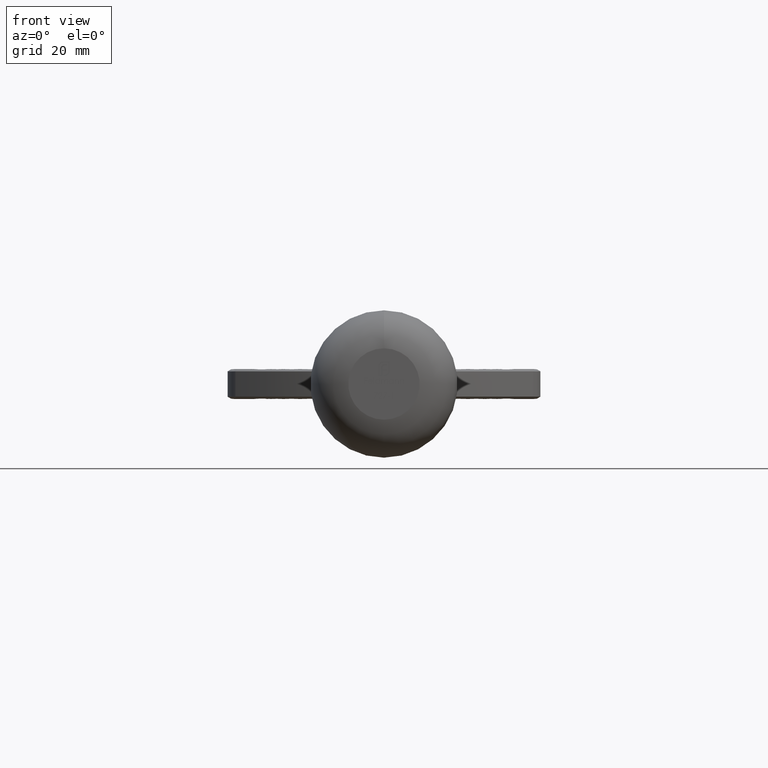
[diagram: clean part render]
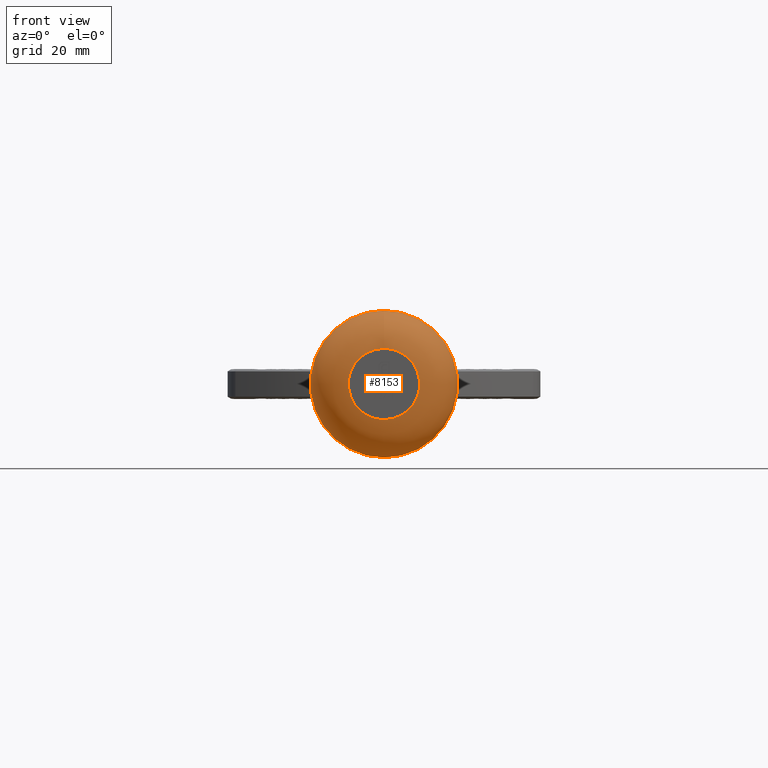
[diagram: same view with one face highlighted and labeled with its STEP entity id]
A machine part, front view. The second image highlights one B-rep face of the part: STEP entity #8153.
In plain terms, the highlighted toroidal blend (fillet) surface has major radius 7.75 mm and minor (blend) radius 8.25 mm.
Its self-contained STEP definition (entity closure, byte-faithful):
#37 = CARTESIAN_POINT ( 'NONE',  ( -15.70732162931448528, -19.57412458702678038, 0.6620331333767709436 ) ) ;
#125 = CARTESIAN_POINT ( 'NONE',  ( -13.73724700003639931, -19.34070796460224884, 7.477229911939941687 ) ) ;
#229 = CARTESIAN_POINT ( 'NONE',  ( 11.71685802671840548, -19.13574760348332759, 10.28437048258841990 ) ) ;
#265 = CARTESIAN_POINT ( 'NONE',  ( 3.443747093800764159, -18.63025660746363599, 15.00111593391057596 ) ) ;
#356 = CARTESIAN_POINT ( 'NONE',  ( 0.7037205721614030463, -18.57818533388499915, 15.36527872725278243 ) ) ;
#529 = VERTEX_POINT ( 'NONE', #841 ) ;
#559 = CARTESIAN_POINT ( 'NONE',  ( -11.71729713318398147, -19.13578893511338563, -10.28388033237391497 ) ) ;
#639 = CARTESIAN_POINT ( 'NONE',  ( -9.128027797552611844, -18.92110899342737795, -12.54609791265849061 ) ) ;
#661 = CARTESIAN_POINT ( 'NONE',  ( 13.73724700003201349, -19.34070796460177277, -7.477229911947692820 ) ) ;
#701 = CARTESIAN_POINT ( 'NONE',  ( 15.37168942086549706, -19.53230741582190433, -3.241421685026968813 ) ) ;
#738 = CARTESIAN_POINT ( 'NONE',  ( 14.06402115556342380, -19.37519990017266025, 6.897559800137014641 ) ) ;
#841 = CARTESIAN_POINT ( 'NONE',  ( 13.74456268988297225, -19.34070796460177277, 7.463773761301380816 ) ) ;
#950 = CARTESIAN_POINT ( 'NONE',  ( -15.29236728832824888, -19.52288315187717771, -3.541401456644251322 ) ) ;
#1211 = CARTESIAN_POINT ( 'NONE',  ( 13.40145683187901859, -19.30366281970927034, 8.071900788222752254 ) ) ;
#1258 = CARTESIAN_POINT ( 'NONE',  ( 2.418953016645177367, -18.60401410716640314, 15.18908747446822893 ) ) ;
#1296 = CARTESIAN_POINT ( 'NONE',  ( 10.22564549621019481, -19.00563445521657968, 11.70906421970811628 ) ) ;
#1339 = CARTESIAN_POINT ( 'NONE',  ( -1.370252859363842113, -18.58540254813071613, 15.32359998277321900 ) ) ;
#1357 = CARTESIAN_POINT ( 'NONE',  ( -13.01814827950030029, -19.26343387127528572, -8.653833904707637359 ) ) ;
#1448 = CARTESIAN_POINT ( 'NONE',  ( 0.3310436180698204667, -18.57844592663914796, -15.36632690227910736 ) ) ;
#1526 = CARTESIAN_POINT ( 'NONE',  ( 8.536858301184357956, -18.87840472064427289, -12.93679508394443900 ) ) ;
#1553 = CARTESIAN_POINT ( 'NONE',  ( -4.766205144392278825, -18.67492790641594169, 14.66588375309063075 ) ) ;
#1621 = B_SPLINE_CURVE_WITH_KNOTS ( 'NONE', 3,
 ( #661, #1630, #7643, #1793, #6639, #701, #8627, #2779, #3653, #5572, #9599, #12425, #7598, #12338, #738, #5530 ),
 .UNSPECIFIED., .F., .F.,
 ( 4, 2, 2, 2, 2, 2, 2, 4 ),
 ( 0.06617270981354325676, 0.06814373241659948954, 0.07011475501965573620, 0.07208577762271196898, 0.07405680022576820176, 0.07799884543188068120, 0.07996986803493691398, 0.08194089063799314676 ),
 .UNSPECIFIED. ) ;
#1630 = CARTESIAN_POINT ( 'NONE',  ( 14.05605773533482861, -19.37506125008313163, -6.913448936943464851 ) ) ;
#1793 = CARTESIAN_POINT ( 'NONE',  ( 14.83557063522544439, -19.46605738517900264, -5.111066321600636009 ) ) ;
#1865 = EDGE_CURVE ( 'NONE', #11268, #11268, #11769, .T. ) ;
#1873 = CARTESIAN_POINT ( 'NONE',  ( -15.36505422618864714, -19.53206734984433979, -3.224123865853164350 ) ) ;
#2184 = CARTESIAN_POINT ( 'NONE',  ( 10.74335809208267989, -19.04899397394898131, 11.25675861536690725 ) ) ;
#2221 = CARTESIAN_POINT ( 'NONE',  ( 1.391210126348925380, -18.58496244415120913, 15.32122506314385824 ) ) ;
#2288 = VERTEX_POINT ( 'NONE', #7915 ) ;
#2325 = CARTESIAN_POINT ( 'NONE',  ( -12.17273847422997690, -19.17915758017074168, -9.764149219720072992 ) ) ;
#2390 = DIRECTION ( 'NONE',  ( 0.000000000000000000, 0.000000000000000000, 1.000000000000000000 ) ) ;
#2407 = CARTESIAN_POINT ( 'NONE',  ( -8.542964947739019266, -18.87963560146026509, -12.93336373028667730 ) ) ;
#2461 = CARTESIAN_POINT ( 'NONE',  ( -10.74407468845551072, -19.04905563560618376, -11.25609432146072741 ) ) ;
#2528 = CARTESIAN_POINT ( 'NONE',  ( -5.420325787739684209, -18.70252965902105302, 14.44888785789142105 ) ) ;
#2546 = CARTESIAN_POINT ( 'NONE',  ( 10.20850369200323016, -19.00391225422378483, -11.72314827973143991 ) ) ;
#2779 = CARTESIAN_POINT ( 'NONE',  ( 15.66489385541573398, -19.56893056379515983, -1.314637247642459261 ) ) ;
#2968 = CARTESIAN_POINT ( 'NONE',  ( -14.47346079901414306, -19.42277544521091315, -6.001309046197713215 ) ) ;
#3166 = EDGE_CURVE ( 'NONE', #2288, #9761, #7426, .T. ) ;
#3264 = CARTESIAN_POINT ( 'NONE',  ( 0.000000000000000000, -29.99999999999999289, 7.750000000000001776 ) ) ;
#3394 = CARTESIAN_POINT ( 'NONE',  ( 3.433146953558957826, -18.62906724357413424, -15.01486218946384632 ) ) ;
#3424 = ORIENTED_EDGE ( 'NONE', *, *, #1865, .T. ) ;
#3492 = CARTESIAN_POINT ( 'NONE',  ( -7.334595523665388583, -18.80178974787522250, 13.62165104382381209 ) ) ;
#3512 = CARTESIAN_POINT ( 'NONE',  ( -2.760552112080552067, -18.61183253989615238, -15.13405579133059220 ) ) ;
#3653 = CARTESIAN_POINT ( 'NONE',  ( 15.70778981358020943, -19.57418370261115825, -0.6551724320869872775 ) ) ;
#3767 = CARTESIAN_POINT ( 'NONE',  ( -15.66538749942114350, -19.56899180555357987, 1.309791268269048237 ) ) ;
#3938 = CARTESIAN_POINT ( 'NONE',  ( -15.49020399725187680, -19.54785821551023517, -2.582885396851803517 ) ) ;
#4259 = CARTESIAN_POINT ( 'NONE',  ( 3.785165295397488361, -18.64087653386978616, 14.92308191362599068 ) ) ;
#4260 = CARTESIAN_POINT ( 'NONE',  ( 13.73724700003201349, -19.34070796460177277, -7.477229911947692820 ) ) ;
#4304 = CARTESIAN_POINT ( 'NONE',  ( -9.111247718519781102, -18.91919809793403928, 12.55733251079883139 ) ) ;
#4366 = CARTESIAN_POINT ( 'NONE',  ( 7.335578015568868793, -18.80184950222685103, -13.62112713699818300 ) ) ;
#4486 = CARTESIAN_POINT ( 'NONE',  ( -8.536613610555956910, -18.87838627199494468, 12.93697022835745081 ) ) ;
#4507 = CARTESIAN_POINT ( 'NONE',  ( 10.73280518068620282, -19.04797776339669824, -11.26686064805825893 ) ) ;
#4541 = CARTESIAN_POINT ( 'NONE',  ( -3.442705424211377263, -18.63022655022981411, -15.00133475076157730 ) ) ;
#4682 = EDGE_LOOP ( 'NONE', ( #3424 ) ) ;
#4771 = CARTESIAN_POINT ( 'NONE',  ( -13.74456268986610041, -19.34070796459997510, -7.463773761331296441 ) ) ;
#4860 = CARTESIAN_POINT ( 'NONE',  ( -14.05738717733392029, -19.37498962177072670, -6.887902346352383631 ) ) ;
#5220 = CARTESIAN_POINT ( 'NONE',  ( 13.01845407283427569, -19.26346558112621921, 8.653384730215760712 ) ) ;
#5354 = CARTESIAN_POINT ( 'NONE',  ( -13.04987314970519563, -19.26664035175846479, 8.692773357064469408 ) ) ;
#5425 = ORIENTED_EDGE ( 'NONE', *, *, #3166, .T. ) ;
#5429 = CARTESIAN_POINT ( 'NONE',  ( 4.766153946815885334, -18.67492628306388625, -14.66589591704950912 ) ) ;
#5509 = CARTESIAN_POINT ( 'NONE',  ( 1.369478519247597337, -18.58685683240818776, -15.31231597361600727 ) ) ;
#5530 = CARTESIAN_POINT ( 'NONE',  ( 13.74456268988297225, -19.34070796460177277, 7.463773761301380816 ) ) ;
#5572 = CARTESIAN_POINT ( 'NONE',  ( 15.70837922959524313, -19.57502928221166982, 1.301717743942227612 ) ) ;
#5634 = EDGE_CURVE ( 'NONE', #529, #6121, #7506, .T. ) ;
#5726 = CARTESIAN_POINT ( 'NONE',  ( -15.04454902260126836, -19.49179888429793195, -4.483410763881499506 ) ) ;
#5772 = CARTESIAN_POINT ( 'NONE',  ( -14.38248437066444474, -19.41023518292310968, 6.336200098195366337 ) ) ;
#5822 = EDGE_CURVE ( 'NONE', #9761, #529, #1621, .T. ) ;
#6121 = VERTEX_POINT ( 'NONE', #125 ) ;
#6218 = CARTESIAN_POINT ( 'NONE',  ( 2.760950151319491841, -18.61184130802253023, 15.13399446169272444 ) ) ;
#6239 = CARTESIAN_POINT ( 'NONE',  ( -13.74456268986610041, -19.34070796459997510, -7.463773761331296441 ) ) ;
#6258 = DIRECTION ( 'NONE',  ( -0.000000000000000000, 1.000000000000000000, -0.000000000000000000 ) ) ;
#6306 = CARTESIAN_POINT ( 'NONE',  ( -10.73105490408234708, -19.04782586553601220, 11.26849452559835463 ) ) ;
#6331 = ORIENTED_EDGE ( 'NONE', *, *, #5634, .T. ) ;
#6427 = CARTESIAN_POINT ( 'NONE',  ( -6.703104415164760965, -18.76583705659404444, 13.92788234920589829 ) ) ;
#6639 = CARTESIAN_POINT ( 'NONE',  ( 15.04113226408101056, -19.49132943878793967, -4.494166067212955085 ) ) ;
#6671 = TOROIDAL_SURFACE ( 'NONE', #10415, 7.750000000000000000, 8.249999999999996447 ) ;
#6797 = CARTESIAN_POINT ( 'NONE',  ( -15.35964667640699766, -19.53087399161342219, 3.248288009320780656 ) ) ;
#6835 = CARTESIAN_POINT ( 'NONE',  ( -14.34146898008089011, -19.40734797614251761, -6.299040210123148853 ) ) ;
#6897 = B_SPLINE_CURVE_WITH_KNOTS ( 'NONE', 3,
 ( #12626, #5772, #10595, #9630, #6797, #8819, #8692, #3767, #37, #9750, #10676, #7794, #3938, #1873, #950, #5726, #8780, #2968, #6835, #4860, #11550, #4771 ),
 .UNSPECIFIED., .F., .F.,
 ( 4, 2, 2, 2, 2, 2, 2, 2, 2, 2, 4 ),
 ( 0.01680099992671240522, 0.02074276228923556398, 0.02172820287986635193, 0.02271364347049713989, 0.02468452465175871927, 0.02665540583302029864, 0.02764084642365108313, 0.02862628701428187455, 0.03059716819554345046, 0.03158260878617423495, 0.03256804937680501943 ),
 .UNSPECIFIED. ) ;
#7098 = CARTESIAN_POINT ( 'NONE',  ( 8.242648193207097407, -18.86049462591443060, 13.10460045015151742 ) ) ;
#7174 = CARTESIAN_POINT ( 'NONE',  ( -0.6758576546147944120, -18.57853305055645521, 15.36667431758731439 ) ) ;
#7328 = CARTESIAN_POINT ( 'NONE',  ( 0.6767415762365680543, -18.58020635715013569, -15.35576600598284003 ) ) ;
#7372 = CARTESIAN_POINT ( 'NONE',  ( -2.418797934193646970, -18.60401126143000639, -15.18910719619843519 ) ) ;
#7426 = B_SPLINE_CURVE_WITH_KNOTS ( 'NONE', 3,
 ( #6239, #11139, #1357, #2325, #559, #2461, #9289, #639, #2407, #9341, #10339, #8341, #4541, #3512, #7372, #9251, #9376, #1448, #7328, #5509, #8380, #11344, #3394, #5429, #10217, #8258, #4366, #1526, #12248, #2546, #4507, #10380, #12280, #8298 ),
 .UNSPECIFIED., .F., .F.,
 ( 4, 2, 2, 2, 2, 2, 2, 2, 2, 2, 2, 2, 2, 2, 2, 2, 4 ),
 ( 0.000000000000000000, 0.002092974038459423196, 0.004185948076918846392, 0.006278922115378269588, 0.008371896153837692783, 0.01255784423075652877, 0.01360433124998623906, 0.01465081826921594763, 0.01674379230767536475, 0.01779027932690507505, 0.01883676634613478187, 0.02092974038459419553, 0.02302271442305361265, 0.02511568846151302978, 0.02720866249997244343, 0.02930163653843185709, 0.03348758461535069481 ),
 .UNSPECIFIED. ) ;
#7506 = B_SPLINE_CURVE_WITH_KNOTS ( 'NONE', 3,
 ( #7983, #1211, #5220, #8062, #229, #2184, #1296, #8105, #11911, #11036, #7098, #11994, #10105, #4259, #265, #6218, #1258, #2221, #356, #7174, #1339, #11079, #10320, #1553, #2528, #6427, #3492, #4486, #4304, #12266, #6306, #12177, #5354, #8278 ),
 .UNSPECIFIED., .F., .F.,
 ( 4, 2, 2, 2, 2, 2, 2, 2, 2, 2, 2, 2, 2, 2, 2, 2, 4 ),
 ( 0.000000000000000000, 0.002092329952305736849, 0.004184659904611473698, 0.006276989856917210113, 0.007323154833070076586, 0.008369319809222943926, 0.01255397971383440461, 0.01360014468998727022, 0.01464630966614013409, 0.01673863961844586357, 0.01883096957075159478, 0.02092329952305732599, 0.02301562947536306067, 0.02510795942766879188, 0.02720028937997452309, 0.02929261933228025777, 0.03347727923689171325 ),
 .UNSPECIFIED. ) ;
#7598 = CARTESIAN_POINT ( 'NONE',  ( 14.83491674900529844, -19.46576415897640899, 5.111854194944774221 ) ) ;
#7643 = CARTESIAN_POINT ( 'NONE',  ( 14.34128944954971985, -19.40769385051392248, -6.325371815168569611 ) ) ;
#7794 = CARTESIAN_POINT ( 'NONE',  ( -15.54278635227951355, -19.55447870590547765, -2.257745451626181232 ) ) ;
#7915 = CARTESIAN_POINT ( 'NONE',  ( -13.74456268986610041, -19.34070796459997510, -7.463773761331296441 ) ) ;
#7983 = CARTESIAN_POINT ( 'NONE',  ( 13.74456268988297225, -19.34070796460177277, 7.463773761301380816 ) ) ;
#8062 = CARTESIAN_POINT ( 'NONE',  ( 12.17319781286814440, -19.17920214507121557, 9.763593468409236920 ) ) ;
#8071 = EDGE_LOOP ( 'NONE', ( #6331, #11582, #5425, #8923 ) ) ;
#8105 = CARTESIAN_POINT ( 'NONE',  ( 9.402543358558386188, -18.94224969311911266, 12.33674191535058107 ) ) ;
#8153 = ADVANCED_FACE ( 'NONE', ( #12103, #8479 ), #6671, .T. ) ;
#8258 = CARTESIAN_POINT ( 'NONE',  ( 6.704278440063828448, -18.76589829024819522, -13.92737122852648213 ) ) ;
#8278 = CARTESIAN_POINT ( 'NONE',  ( -13.73724700003639931, -19.34070796460224884, 7.477229911939941687 ) ) ;
#8298 = CARTESIAN_POINT ( 'NONE',  ( 13.73724700003201349, -19.34070796460177277, -7.477229911947692820 ) ) ;
#8341 = CARTESIAN_POINT ( 'NONE',  ( -3.784192672859290063, -18.64084410990955831, -14.92332367549142269 ) ) ;
#8380 = CARTESIAN_POINT ( 'NONE',  ( 1.717764629127442433, -18.59177274921956879, -15.27924889086525084 ) ) ;
#8479 = FACE_OUTER_BOUND ( 'NONE', #4682, .T. ) ;
#8576 = AXIS2_PLACEMENT_3D ( 'NONE', #11081, #6258, #2390 ) ;
#8627 = CARTESIAN_POINT ( 'NONE',  ( 15.49667616033056206, -19.54799475035880008, -2.605574992981111393 ) ) ;
#8692 = CARTESIAN_POINT ( 'NONE',  ( -15.53909688908915676, -19.55327438986945765, 2.280554442993098618 ) ) ;
#8780 = CARTESIAN_POINT ( 'NONE',  ( -14.83977458276948980, -19.46635747727086851, -5.098355850122837651 ) ) ;
#8819 = CARTESIAN_POINT ( 'NONE',  ( -15.48617293710843690, -19.54666754497663916, 2.605095049945809205 ) ) ;
#8923 = ORIENTED_EDGE ( 'NONE', *, *, #5822, .T. ) ;
#9251 = CARTESIAN_POINT ( 'NONE',  ( -1.391550394861712947, -18.58496869366744164, -15.32118174923272669 ) ) ;
#9289 = CARTESIAN_POINT ( 'NONE',  ( -10.22628071296884755, -19.00568440651715463, -11.70856271232604939 ) ) ;
#9341 = CARTESIAN_POINT ( 'NONE',  ( -6.738868684283136012, -18.76464820672677902, -13.96205651757889221 ) ) ;
#9376 = CARTESIAN_POINT ( 'NONE',  ( -0.7040807471596287614, -18.57818567325486825, -15.36527556085168555 ) ) ;
#9599 = CARTESIAN_POINT ( 'NONE',  ( 15.54321028533918359, -19.55434594966251183, 2.588400213116158977 ) ) ;
#9630 = CARTESIAN_POINT ( 'NONE',  ( -15.28629098770972838, -19.52171916193501033, 3.566131756140211273 ) ) ;
#9736 = DIRECTION ( 'NONE',  ( -0.000000000000000000, 1.000000000000000000, -0.000000000000000000 ) ) ;
#9750 = CARTESIAN_POINT ( 'NONE',  ( -15.70863669479008884, -19.57479624729463552, -0.6346198406775096501 ) ) ;
#9761 = VERTEX_POINT ( 'NONE', #4260 ) ;
#10105 = CARTESIAN_POINT ( 'NONE',  ( 5.464201467260591194, -18.69957340662039513, 14.48133568817504901 ) ) ;
#10181 = EDGE_CURVE ( 'NONE', #6121, #2288, #6897, .T. ) ;
#10217 = CARTESIAN_POINT ( 'NONE',  ( 5.420499379444172483, -18.70253493608867856, -14.44885160289531711 ) ) ;
#10320 = CARTESIAN_POINT ( 'NONE',  ( -3.433041838126445811, -18.62906376530792230, 15.01488846846233827 ) ) ;
#10339 = CARTESIAN_POINT ( 'NONE',  ( -5.465049457683710976, -18.69959674784792725, -14.48116904366353452 ) ) ;
#10380 = CARTESIAN_POINT ( 'NONE',  ( 12.21175572915447560, -19.18039530772064083, -9.791103664736777290 ) ) ;
#10415 = AXIS2_PLACEMENT_3D ( 'NONE', #12526, #9736, #11583 ) ;
#10595 = CARTESIAN_POINT ( 'NONE',  ( -14.87033384156340610, -19.47016322340495620, 5.137079271028578198 ) ) ;
#10676 = CARTESIAN_POINT ( 'NONE',  ( -15.66795005967766841, -19.57007062398190911, -1.283516081513097706 ) ) ;
#11036 = CARTESIAN_POINT ( 'NONE',  ( 8.540208263141694900, -18.88049619350529440, 12.92162726848642507 ) ) ;
#11079 = CARTESIAN_POINT ( 'NONE',  ( -2.753999044686978426, -18.61078146788396026, 15.14689430387655023 ) ) ;
#11081 = CARTESIAN_POINT ( 'NONE',  ( 0.000000000000000000, -29.99999999999999289, 0.000000000000000000 ) ) ;
#11139 = CARTESIAN_POINT ( 'NONE',  ( -13.40143767924113050, -19.30366075179873420, -8.071934734701279979 ) ) ;
#11268 = VERTEX_POINT ( 'NONE', #3264 ) ;
#11344 = CARTESIAN_POINT ( 'NONE',  ( 2.754484698347592353, -18.61079723235487648, -15.14677917523202666 ) ) ;
#11550 = CARTESIAN_POINT ( 'NONE',  ( -13.90496835246459284, -19.35802696651703769, -7.179467864415553180 ) ) ;
#11582 = ORIENTED_EDGE ( 'NONE', *, *, #10181, .T. ) ;
#11583 = DIRECTION ( 'NONE',  ( 0.000000000000000000, 0.000000000000000000, 1.000000000000000000 ) ) ;
#11769 = CIRCLE ( 'NONE', #8576, 7.750000000000001776 ) ;
#11911 = CARTESIAN_POINT ( 'NONE',  ( 9.120395306906102562, -18.92139541027647454, 12.53747669037221968 ) ) ;
#11994 = CARTESIAN_POINT ( 'NONE',  ( 6.737988018051611405, -18.76459101465566448, 13.96257231062168103 ) ) ;
#12103 = FACE_OUTER_BOUND ( 'NONE', #8071, .T. ) ;
#12177 = CARTESIAN_POINT ( 'NONE',  ( -12.21151798500258145, -19.18036441393483926, 9.791565708692528958 ) ) ;
#12248 = CARTESIAN_POINT ( 'NONE',  ( 9.111428956711730365, -18.91921057549069829, -12.55721922400700663 ) ) ;
#12266 = CARTESIAN_POINT ( 'NONE',  ( -10.20798372598764203, -19.00387059498469000, 11.72356808048166599 ) ) ;
#12280 = CARTESIAN_POINT ( 'NONE',  ( 13.04983566822055607, -19.26663631296051449, -8.692839638858290030 ) ) ;
#12338 = CARTESIAN_POINT ( 'NONE',  ( 14.34599067427996744, -19.40762542345331099, 6.313963167617480110 ) ) ;
#12425 = CARTESIAN_POINT ( 'NONE',  ( 15.04246902977448563, -19.49153842148668403, 4.491063971980646663 ) ) ;
#12526 = CARTESIAN_POINT ( 'NONE',  ( 0.000000000000000000, -21.74999999999999645, 0.000000000000000000 ) ) ;
#12626 = CARTESIAN_POINT ( 'NONE',  ( -13.73724700003639931, -19.34070796460224884, 7.477229911939941687 ) ) ;